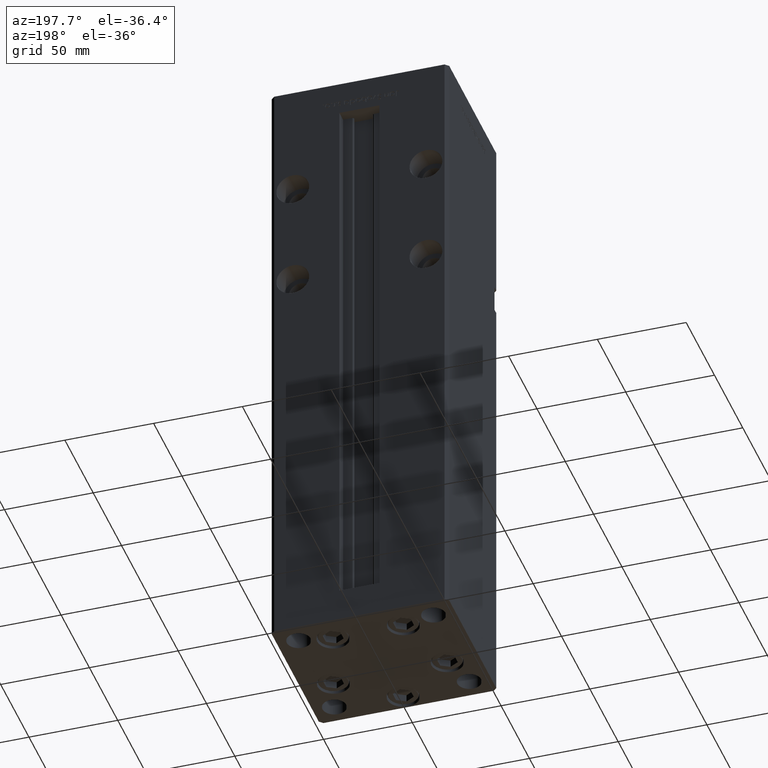
[diagram: clean part render]
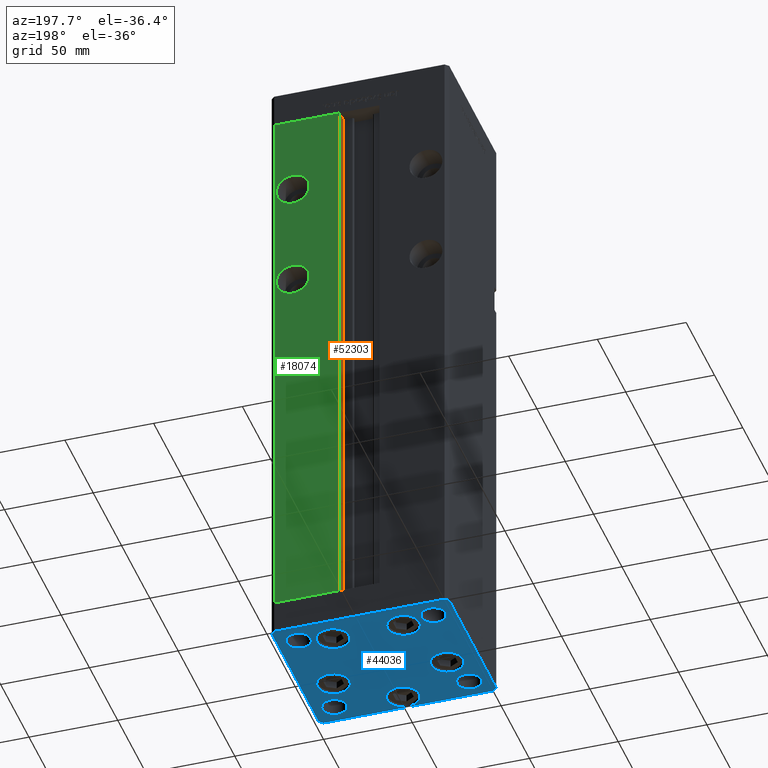
[diagram: same view with three faces highlighted in distinct colors, each labeled with its STEP entity id]
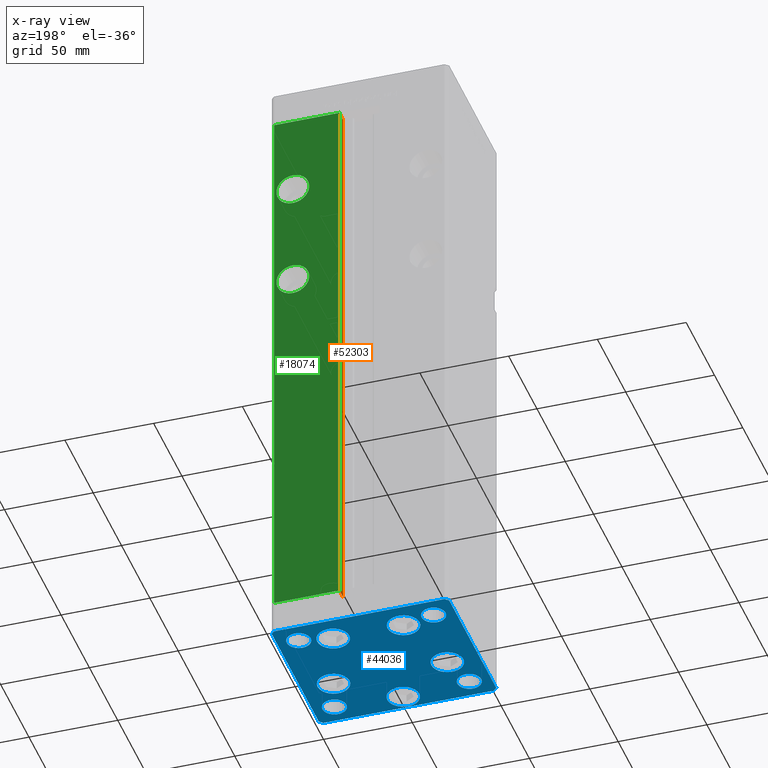
[diagram: x-ray of the same camera — body ghosted, the three highlighted faces saturated]
A machine part, auxiliary view with three faces highlighted in distinct colors.
The next image is the same camera in x-ray (body ghosted, the three faces saturated) — at least one of them is partly hidden behind the body in this view.
Their STEP definitions:

[orange] entity #52303 — the highlighted planar face has unit normal (1, 0, 0).
#1035 = VERTEX_POINT ( 'NONE', #45109 ) ;
#1156 = CARTESIAN_POINT ( 'NONE',  ( 11.24999999999999645, 37.00000000000000000, 0.000000000000000000 ) ) ;
#4479 = VERTEX_POINT ( 'NONE', #5260 ) ;
#5240 = CARTESIAN_POINT ( 'NONE',  ( 11.24999999999999645, 37.00000000000000000, 0.000000000000000000 ) ) ;
#5260 = CARTESIAN_POINT ( 'NONE',  ( 11.24999999999998934, 43.50000000000000000, 318.5000000000000000 ) ) ;
#7309 = CARTESIAN_POINT ( 'NONE',  ( 11.24999999999999645, 43.50000000000000000, 0.000000000000000000 ) ) ;
#11857 = DIRECTION ( 'NONE',  ( 1.000000000000000000, -0.000000000000000000, 0.000000000000000000 ) ) ;
#11937 = VECTOR ( 'NONE', #14554, 1000.000000000000000 ) ;
#12691 = VERTEX_POINT ( 'NONE', #5240 ) ;
#13915 = DIRECTION ( 'NONE',  ( -0.000000000000000000, -1.000000000000000000, 0.000000000000000000 ) ) ;
#14554 = DIRECTION ( 'NONE',  ( -0.000000000000000000, -0.000000000000000000, 1.000000000000000000 ) ) ;
#15353 = DIRECTION ( 'NONE',  ( 0.000000000000000000, 0.000000000000000000, -1.000000000000000000 ) ) ;
#15814 = EDGE_CURVE ( 'NONE', #12691, #1035, #38721, .T. ) ;
#18176 = DIRECTION ( 'NONE',  ( -0.000000000000000000, -0.000000000000000000, 1.000000000000000000 ) ) ;
#23067 = ORIENTED_EDGE ( 'NONE', *, *, #42869, .F. ) ;
#25018 = VECTOR ( 'NONE', #13915, 1000.000000000000000 ) ;
#25058 = AXIS2_PLACEMENT_3D ( 'NONE', #47617, #11857, #15353 ) ;
#25335 = DIRECTION ( 'NONE',  ( 0.000000000000000000, 1.000000000000000000, 0.000000000000000000 ) ) ;
#26605 = VECTOR ( 'NONE', #18176, 1000.000000000000000 ) ;
#26773 = CARTESIAN_POINT ( 'NONE',  ( 11.24999999999999645, 43.50000000000000000, 0.000000000000000000 ) ) ;
#27232 = EDGE_CURVE ( 'NONE', #12691, #51340, #50871, .T. ) ;
#31221 = PLANE ( 'NONE',  #25058 ) ;
#32265 = FACE_OUTER_BOUND ( 'NONE', #50209, .T. ) ;
#34326 = LINE ( 'NONE', #50736, #25018 ) ;
#34571 = LINE ( 'NONE', #26773, #26605 ) ;
#34966 = CARTESIAN_POINT ( 'NONE',  ( 11.24999999999999645, 37.00000000000000000, 0.000000000000000000 ) ) ;
#36760 = ORIENTED_EDGE ( 'NONE', *, *, #27232, .F. ) ;
#38721 = LINE ( 'NONE', #34966, #11937 ) ;
#40040 = ORIENTED_EDGE ( 'NONE', *, *, #15814, .T. ) ;
#42869 = EDGE_CURVE ( 'NONE', #51340, #4479, #34571, .T. ) ;
#43039 = VECTOR ( 'NONE', #25335, 1000.000000000000000 ) ;
#45109 = CARTESIAN_POINT ( 'NONE',  ( 11.24999999999999645, 37.00000000000000000, 318.5000000000000000 ) ) ;
#47617 = CARTESIAN_POINT ( 'NONE',  ( 11.24999999999999645, 37.00000000000000000, 0.000000000000000000 ) ) ;
#48209 = EDGE_CURVE ( 'NONE', #4479, #1035, #34326, .T. ) ;
#50209 = EDGE_LOOP ( 'NONE', ( #23067, #36760, #40040, #51328 ) ) ;
#50736 = CARTESIAN_POINT ( 'NONE',  ( 11.24999999999999645, 0.000000000000000000, 318.5000000000000000 ) ) ;
#50871 = LINE ( 'NONE', #1156, #43039 ) ;
#51328 = ORIENTED_EDGE ( 'NONE', *, *, #48209, .F. ) ;
#51340 = VERTEX_POINT ( 'NONE', #7309 ) ;
#52303 = ADVANCED_FACE ( 'NONE', ( #32265 ), #31221, .F. ) ;

[blue] entity #44036 — the highlighted planar face has unit normal (0, 0, -1).
#144 = CARTESIAN_POINT ( 'NONE',  ( 4.163799117101000559E-15, -34.00000000000000000, 0.000000000000000000 ) ) ;
#827 = ORIENTED_EDGE ( 'NONE', *, *, #37353, .F. ) ;
#963 = CARTESIAN_POINT ( 'NONE',  ( 50.00000000000000000, -41.49999999999999289, 0.000000000000000000 ) ) ;
#1093 = CIRCLE ( 'NONE', #8815, 6.749999999999999112 ) ;
#1415 = CARTESIAN_POINT ( 'NONE',  ( -48.00000000000000711, 43.49999999999996447, 0.000000000000000000 ) ) ;
#1514 = CARTESIAN_POINT ( 'NONE',  ( -37.99999999999999289, -31.50000000000000000, 0.000000000000000000 ) ) ;
#1663 = CARTESIAN_POINT ( 'NONE',  ( -44.74999999999999289, -31.50000000000000000, 0.000000000000000000 ) ) ;
#1671 = CARTESIAN_POINT ( 'NONE',  ( 23.05550741379014923, -11.33333333333333037, 0.000000000000000000 ) ) ;
#1809 = DIRECTION ( 'NONE',  ( 1.000000000000000000, 0.000000000000000000, 0.000000000000000000 ) ) ;
#1849 = DIRECTION ( 'NONE',  ( 0.000000000000000000, -0.000000000000000000, -1.000000000000000000 ) ) ;
#1924 = VERTEX_POINT ( 'NONE', #31564 ) ;
#2044 = DIRECTION ( 'NONE',  ( 0.000000000000000000, -0.000000000000000000, -1.000000000000000000 ) ) ;
#2178 = LINE ( 'NONE', #30911, #44138 ) ;
#2534 = CARTESIAN_POINT ( 'NONE',  ( 9.000000000000003553, -34.00000000000000000, 0.000000000000000000 ) ) ;
#2558 = CIRCLE ( 'NONE', #42899, 6.749999999999999112 ) ;
#2646 = DIRECTION ( 'NONE',  ( 1.000000000000000000, 0.000000000000000000, 0.000000000000000000 ) ) ;
#3134 = CARTESIAN_POINT ( 'NONE',  ( 49.99999999999992184, 41.49999999999998579, 0.000000000000000000 ) ) ;
#3247 = VERTEX_POINT ( 'NONE', #6227 ) ;
#4091 = EDGE_CURVE ( 'NONE', #15366, #16197, #10828, .T. ) ;
#4290 = AXIS2_PLACEMENT_3D ( 'NONE', #20359, #36739, #45339 ) ;
#4567 = VERTEX_POINT ( 'NONE', #34801 ) ;
#4956 = VECTOR ( 'NONE', #13331, 1000.000000000000114 ) ;
#5060 = CIRCLE ( 'NONE', #51423, 9.000000000000001776 ) ;
#5576 = VERTEX_POINT ( 'NONE', #963 ) ;
#5881 = CARTESIAN_POINT ( 'NONE',  ( 41.05550741379015278, -11.33333333333332860, 0.000000000000000000 ) ) ;
#6079 = DIRECTION ( 'NONE',  ( -0.000000000000000000, 0.000000000000000000, 1.000000000000000000 ) ) ;
#6159 = EDGE_LOOP ( 'NONE', ( #7152, #13502 ) ) ;
#6227 = CARTESIAN_POINT ( 'NONE',  ( -48.00000000000000711, 43.49999999999996447, 0.000000000000000000 ) ) ;
#6249 = EDGE_CURVE ( 'NONE', #36943, #8982, #17337, .T. ) ;
#6710 = EDGE_CURVE ( 'NONE', #11426, #26482, #42267, .T. ) ;
#6797 = DIRECTION ( 'NONE',  ( -0.000000000000000000, 0.000000000000000000, 1.000000000000000000 ) ) ;
#7014 = CIRCLE ( 'NONE', #40468, 9.000000000000001776 ) ;
#7152 = ORIENTED_EDGE ( 'NONE', *, *, #20540, .F. ) ;
#7439 = DIRECTION ( 'NONE',  ( -0.7071067811865474617, 0.7071067811865474617, 0.000000000000000000 ) ) ;
#7767 = EDGE_LOOP ( 'NONE', ( #18865, #14057 ) ) ;
#8250 = EDGE_CURVE ( 'NONE', #51225, #22341, #10891, .T. ) ;
#8815 = AXIS2_PLACEMENT_3D ( 'NONE', #46609, #9812, #42562 ) ;
#8850 = EDGE_LOOP ( 'NONE', ( #24772, #16345 ) ) ;
#8905 = ORIENTED_EDGE ( 'NONE', *, *, #50925, .F. ) ;
#8982 = VERTEX_POINT ( 'NONE', #21406 ) ;
#9308 = FACE_OUTER_BOUND ( 'NONE', #49142, .T. ) ;
#9329 = CARTESIAN_POINT ( 'NONE',  ( 49.99999999999992184, 41.49999999999998579, 0.000000000000000000 ) ) ;
#9702 = CIRCLE ( 'NONE', #41394, 9.000000000000000000 ) ;
#9812 = DIRECTION ( 'NONE',  ( -0.000000000000000000, 0.000000000000000000, 1.000000000000000000 ) ) ;
#10232 = DIRECTION ( 'NONE',  ( 0.7071067811865463515, 0.7071067811865487940, 0.000000000000000000 ) ) ;
#10306 = CARTESIAN_POINT ( 'NONE',  ( -38.00000000000000000, 31.50000000000000000, 0.000000000000000000 ) ) ;
#10354 = ORIENTED_EDGE ( 'NONE', *, *, #37817, .T. ) ;
#10524 = DIRECTION ( 'NONE',  ( -1.000000000000000000, -3.614007241618350743E-16, 0.000000000000000000 ) ) ;
#10828 = LINE ( 'NONE', #27450, #39618 ) ;
#10891 = CIRCLE ( 'NONE', #41756, 6.749999999999999112 ) ;
#11272 = EDGE_CURVE ( 'NONE', #16197, #28868, #42046, .T. ) ;
#11359 = DIRECTION ( 'NONE',  ( 0.000000000000000000, -0.000000000000000000, -1.000000000000000000 ) ) ;
#11426 = VERTEX_POINT ( 'NONE', #28064 ) ;
#11780 = EDGE_LOOP ( 'NONE', ( #18123, #17635 ) ) ;
#12755 = DIRECTION ( 'NONE',  ( 0.000000000000000000, -0.000000000000000000, -1.000000000000000000 ) ) ;
#12765 = VERTEX_POINT ( 'NONE', #51981 ) ;
#13331 = DIRECTION ( 'NONE',  ( 0.7071067811865474617, -0.7071067811865474617, 0.000000000000000000 ) ) ;
#13335 = FACE_BOUND ( 'NONE', #6159, .T. ) ;
#13502 = ORIENTED_EDGE ( 'NONE', *, *, #6710, .F. ) ;
#13623 = DIRECTION ( 'NONE',  ( 1.000000000000000000, 0.000000000000000000, 0.000000000000000000 ) ) ;
#13700 = CARTESIAN_POINT ( 'NONE',  ( -47.99999999999999289, -43.50000000000001421, 0.000000000000000000 ) ) ;
#14057 = ORIENTED_EDGE ( 'NONE', *, *, #32318, .T. ) ;
#14191 = CIRCLE ( 'NONE', #26194, 6.749999999999999112 ) ;
#14650 = AXIS2_PLACEMENT_3D ( 'NONE', #51478, #46645, #35339 ) ;
#14830 = ORIENTED_EDGE ( 'NONE', *, *, #4091, .T. ) ;
#14906 = DIRECTION ( 'NONE',  ( -1.003213576468515193E-15, 1.000000000000000000, 0.000000000000000000 ) ) ;
#15215 = ORIENTED_EDGE ( 'NONE', *, *, #11272, .T. ) ;
#15217 = EDGE_CURVE ( 'NONE', #36005, #52170, #5060, .T. ) ;
#15242 = ORIENTED_EDGE ( 'NONE', *, *, #24378, .T. ) ;
#15358 = DIRECTION ( 'NONE',  ( 8.360113137237628665E-17, -1.000000000000000000, 0.000000000000000000 ) ) ;
#15366 = VERTEX_POINT ( 'NONE', #22406 ) ;
#15901 = DIRECTION ( 'NONE',  ( 1.000000000000000000, 0.000000000000000000, 0.000000000000000000 ) ) ;
#16197 = VERTEX_POINT ( 'NONE', #16852 ) ;
#16254 = DIRECTION ( 'NONE',  ( 1.000000000000000000, 0.000000000000000000, 0.000000000000000000 ) ) ;
#16345 = ORIENTED_EDGE ( 'NONE', *, *, #8250, .T. ) ;
#16845 = DIRECTION ( 'NONE',  ( 1.000000000000000000, 0.000000000000000000, 0.000000000000000000 ) ) ;
#16852 = CARTESIAN_POINT ( 'NONE',  ( -50.00000000000000000, -41.50000000000000000, 0.000000000000000000 ) ) ;
#16913 = VERTEX_POINT ( 'NONE', #48337 ) ;
#17337 = CIRCLE ( 'NONE', #29394, 8.999999999999998224 ) ;
#17635 = ORIENTED_EDGE ( 'NONE', *, *, #15217, .T. ) ;
#17735 = EDGE_CURVE ( 'NONE', #52170, #36005, #41136, .T. ) ;
#18123 = ORIENTED_EDGE ( 'NONE', *, *, #17735, .T. ) ;
#18127 = EDGE_CURVE ( 'NONE', #5576, #37027, #52515, .T. ) ;
#18200 = CARTESIAN_POINT ( 'NONE',  ( 38.00000000000000000, -31.49999999999999289, 0.000000000000000000 ) ) ;
#18691 = CARTESIAN_POINT ( 'NONE',  ( -19.82068048781373903, 27.62499999999999645, 0.000000000000000000 ) ) ;
#18856 = ORIENTED_EDGE ( 'NONE', *, *, #36952, .T. ) ;
#18865 = ORIENTED_EDGE ( 'NONE', *, *, #48560, .T. ) ;
#19203 = VECTOR ( 'NONE', #14906, 1000.000000000000000 ) ;
#19258 = VERTEX_POINT ( 'NONE', #29650 ) ;
#19405 = CARTESIAN_POINT ( 'NONE',  ( -32.05550741379015278, -11.33333333333333925, 0.000000000000000000 ) ) ;
#19479 = ORIENTED_EDGE ( 'NONE', *, *, #30572, .T. ) ;
#19511 = VERTEX_POINT ( 'NONE', #22037 ) ;
#19723 = EDGE_LOOP ( 'NONE', ( #47569, #15242 ) ) ;
#20092 = DIRECTION ( 'NONE',  ( 0.000000000000000000, -0.000000000000000000, -1.000000000000000000 ) ) ;
#20301 = EDGE_LOOP ( 'NONE', ( #34674, #32533 ) ) ;
#20359 = CARTESIAN_POINT ( 'NONE',  ( 32.05550741379015278, -11.33333333333333037, 0.000000000000000000 ) ) ;
#20528 = VERTEX_POINT ( 'NONE', #22383 ) ;
#20540 = EDGE_CURVE ( 'NONE', #26482, #11426, #33513, .T. ) ;
#21394 = DIRECTION ( 'NONE',  ( 0.000000000000000000, -0.000000000000000000, -1.000000000000000000 ) ) ;
#21406 = CARTESIAN_POINT ( 'NONE',  ( 10.82068048781373193, 27.62500000000000000, 0.000000000000000000 ) ) ;
#21651 = EDGE_CURVE ( 'NONE', #1924, #48329, #35165, .T. ) ;
#21829 = CARTESIAN_POINT ( 'NONE',  ( -31.25000000000000000, 31.50000000000000000, 0.000000000000000000 ) ) ;
#22037 = CARTESIAN_POINT ( 'NONE',  ( 47.99999999999990763, 43.50000000000000000, 0.000000000000000000 ) ) ;
#22099 = LINE ( 'NONE', #1415, #31981 ) ;
#22341 = VERTEX_POINT ( 'NONE', #39110 ) ;
#22383 = CARTESIAN_POINT ( 'NONE',  ( 44.75000000000000000, 31.49999999999999289, 0.000000000000000000 ) ) ;
#22406 = CARTESIAN_POINT ( 'NONE',  ( -50.00000000000000711, 41.49999999999995026, 0.000000000000000000 ) ) ;
#22519 = AXIS2_PLACEMENT_3D ( 'NONE', #33753, #6079, #33476 ) ;
#22553 = CIRCLE ( 'NONE', #50023, 6.749999999999999112 ) ;
#23500 = DIRECTION ( 'NONE',  ( 1.000000000000000000, 0.000000000000000000, 0.000000000000000000 ) ) ;
#23611 = AXIS2_PLACEMENT_3D ( 'NONE', #144, #41503, #16254 ) ;
#24144 = VECTOR ( 'NONE', #38403, 1000.000000000000000 ) ;
#24378 = EDGE_CURVE ( 'NONE', #48329, #1924, #44675, .T. ) ;
#24446 = AXIS2_PLACEMENT_3D ( 'NONE', #46402, #50447, #13623 ) ;
#24673 = DIRECTION ( 'NONE',  ( 1.000000000000000000, 0.000000000000000000, 0.000000000000000000 ) ) ;
#24732 = VERTEX_POINT ( 'NONE', #48131 ) ;
#24772 = ORIENTED_EDGE ( 'NONE', *, *, #43500, .T. ) ;
#24914 = AXIS2_PLACEMENT_3D ( 'NONE', #35836, #39597, #51455 ) ;
#24946 = EDGE_CURVE ( 'NONE', #37027, #19511, #35900, .T. ) ;
#26051 = ORIENTED_EDGE ( 'NONE', *, *, #27506, .T. ) ;
#26194 = AXIS2_PLACEMENT_3D ( 'NONE', #39001, #26379, #47601 ) ;
#26379 = DIRECTION ( 'NONE',  ( -0.000000000000000000, 0.000000000000000000, 1.000000000000000000 ) ) ;
#26482 = VERTEX_POINT ( 'NONE', #21829 ) ;
#26525 = DIRECTION ( 'NONE',  ( 0.000000000000000000, -0.000000000000000000, -1.000000000000000000 ) ) ;
#27450 = CARTESIAN_POINT ( 'NONE',  ( -50.00000000000000711, 41.49999999999995026, 0.000000000000000000 ) ) ;
#27506 = EDGE_CURVE ( 'NONE', #28868, #19258, #50522, .T. ) ;
#27994 = DIRECTION ( 'NONE',  ( 0.000000000000000000, -0.000000000000000000, -1.000000000000000000 ) ) ;
#28064 = CARTESIAN_POINT ( 'NONE',  ( -44.75000000000000000, 31.50000000000000000, 0.000000000000000000 ) ) ;
#28610 = DIRECTION ( 'NONE',  ( 1.000000000000000000, 0.000000000000000000, 0.000000000000000000 ) ) ;
#28681 = CARTESIAN_POINT ( 'NONE',  ( 19.82068048781373193, 27.62500000000000000, 0.000000000000000000 ) ) ;
#28722 = CARTESIAN_POINT ( 'NONE',  ( 19.82068048781373193, 27.62500000000000000, 0.000000000000000000 ) ) ;
#28868 = VERTEX_POINT ( 'NONE', #32515 ) ;
#29221 = AXIS2_PLACEMENT_3D ( 'NONE', #10306, #6797, #30974 ) ;
#29394 = AXIS2_PLACEMENT_3D ( 'NONE', #28722, #45107, #24673 ) ;
#29455 = FACE_BOUND ( 'NONE', #20301, .T. ) ;
#29650 = CARTESIAN_POINT ( 'NONE',  ( 47.99999999999999289, -43.50000000000001421, 0.000000000000000000 ) ) ;
#30248 = FACE_BOUND ( 'NONE', #8850, .T. ) ;
#30508 = EDGE_LOOP ( 'NONE', ( #18856, #33422 ) ) ;
#30572 = EDGE_CURVE ( 'NONE', #3247, #15366, #22099, .T. ) ;
#30773 = PLANE ( 'NONE',  #14650 ) ;
#30911 = CARTESIAN_POINT ( 'NONE',  ( 47.99999999999990763, 43.50000000000000000, 0.000000000000000000 ) ) ;
#30974 = DIRECTION ( 'NONE',  ( 1.000000000000000000, 0.000000000000000000, 0.000000000000000000 ) ) ;
#31104 = EDGE_CURVE ( 'NONE', #49511, #43297, #22553, .T. ) ;
#31237 = DIRECTION ( 'NONE',  ( 1.000000000000000000, 0.000000000000000000, 0.000000000000000000 ) ) ;
#31326 = CIRCLE ( 'NONE', #35624, 8.999999999999998224 ) ;
#31564 = CARTESIAN_POINT ( 'NONE',  ( -28.82068048781373548, 27.62499999999999645, 0.000000000000000000 ) ) ;
#31825 = VECTOR ( 'NONE', #7439, 1000.000000000000114 ) ;
#31981 = VECTOR ( 'NONE', #42245, 1000.000000000000000 ) ;
#32318 = EDGE_CURVE ( 'NONE', #12765, #4567, #51796, .T. ) ;
#32367 = CARTESIAN_POINT ( 'NONE',  ( 32.05550741379015278, -11.33333333333333037, 0.000000000000000000 ) ) ;
#32515 = CARTESIAN_POINT ( 'NONE',  ( -47.99999999999999289, -43.50000000000001421, 0.000000000000000000 ) ) ;
#32533 = ORIENTED_EDGE ( 'NONE', *, *, #38053, .T. ) ;
#33422 = ORIENTED_EDGE ( 'NONE', *, *, #6249, .T. ) ;
#33476 = DIRECTION ( 'NONE',  ( 1.000000000000000000, 0.000000000000000000, 0.000000000000000000 ) ) ;
#33513 = CIRCLE ( 'NONE', #29221, 6.749999999999999112 ) ;
#33753 = CARTESIAN_POINT ( 'NONE',  ( -38.00000000000000000, 31.50000000000000000, 0.000000000000000000 ) ) ;
#34139 = CARTESIAN_POINT ( 'NONE',  ( 47.99999999999999289, -43.50000000000001421, 0.000000000000000000 ) ) ;
#34556 = EDGE_CURVE ( 'NONE', #19511, #3247, #2178, .T. ) ;
#34674 = ORIENTED_EDGE ( 'NONE', *, *, #50212, .T. ) ;
#34801 = CARTESIAN_POINT ( 'NONE',  ( -41.05550741379015278, -11.33333333333333925, 0.000000000000000000 ) ) ;
#35165 = CIRCLE ( 'NONE', #42996, 9.000000000000000000 ) ;
#35339 = DIRECTION ( 'NONE',  ( 1.000000000000000000, 0.000000000000000000, 0.000000000000000000 ) ) ;
#35538 = CARTESIAN_POINT ( 'NONE',  ( -37.99999999999999289, -31.50000000000000000, 0.000000000000000000 ) ) ;
#35624 = AXIS2_PLACEMENT_3D ( 'NONE', #28681, #20092, #16845 ) ;
#35836 = CARTESIAN_POINT ( 'NONE',  ( -19.82068048781373903, 27.62499999999999645, 0.000000000000000000 ) ) ;
#35900 = LINE ( 'NONE', #3134, #31825 ) ;
#36005 = VERTEX_POINT ( 'NONE', #5881 ) ;
#36103 = CARTESIAN_POINT ( 'NONE',  ( 50.00000000000000000, -41.49999999999999289, 0.000000000000000000 ) ) ;
#36739 = DIRECTION ( 'NONE',  ( 0.000000000000000000, -0.000000000000000000, -1.000000000000000000 ) ) ;
#36943 = VERTEX_POINT ( 'NONE', #40757 ) ;
#36952 = EDGE_CURVE ( 'NONE', #8982, #36943, #31326, .T. ) ;
#37027 = VERTEX_POINT ( 'NONE', #9329 ) ;
#37353 = EDGE_CURVE ( 'NONE', #20528, #16913, #14191, .T. ) ;
#37516 = CARTESIAN_POINT ( 'NONE',  ( 31.25000000000000000, -31.49999999999999289, 0.000000000000000000 ) ) ;
#37564 = ORIENTED_EDGE ( 'NONE', *, *, #48804, .T. ) ;
#37817 = EDGE_CURVE ( 'NONE', #43297, #49511, #50211, .T. ) ;
#38053 = EDGE_CURVE ( 'NONE', #51868, #24732, #39908, .T. ) ;
#38381 = CARTESIAN_POINT ( 'NONE',  ( 4.163799117101000559E-15, -34.00000000000000000, 0.000000000000000000 ) ) ;
#38403 = DIRECTION ( 'NONE',  ( 1.000000000000000000, 0.000000000000000000, 0.000000000000000000 ) ) ;
#38999 = ORIENTED_EDGE ( 'NONE', *, *, #18127, .T. ) ;
#39001 = CARTESIAN_POINT ( 'NONE',  ( 38.00000000000000000, 31.49999999999999289, 0.000000000000000000 ) ) ;
#39110 = CARTESIAN_POINT ( 'NONE',  ( -31.24999999999999289, -31.50000000000000000, 0.000000000000000000 ) ) ;
#39597 = DIRECTION ( 'NONE',  ( 0.000000000000000000, -0.000000000000000000, -1.000000000000000000 ) ) ;
#39618 = VECTOR ( 'NONE', #15358, 1000.000000000000000 ) ;
#39908 = CIRCLE ( 'NONE', #23611, 9.000000000000000000 ) ;
#40468 = AXIS2_PLACEMENT_3D ( 'NONE', #19405, #11359, #31237 ) ;
#40757 = CARTESIAN_POINT ( 'NONE',  ( 28.82068048781372838, 27.62500000000000000, 0.000000000000000000 ) ) ;
#41136 = CIRCLE ( 'NONE', #4290, 9.000000000000001776 ) ;
#41394 = AXIS2_PLACEMENT_3D ( 'NONE', #38381, #1849, #2646 ) ;
#41503 = DIRECTION ( 'NONE',  ( 0.000000000000000000, -0.000000000000000000, -1.000000000000000000 ) ) ;
#41531 = FACE_BOUND ( 'NONE', #30508, .T. ) ;
#41756 = AXIS2_PLACEMENT_3D ( 'NONE', #1514, #21394, #46116 ) ;
#42046 = LINE ( 'NONE', #46360, #4956 ) ;
#42245 = DIRECTION ( 'NONE',  ( -0.7071067811865463515, -0.7071067811865487940, 0.000000000000000000 ) ) ;
#42267 = CIRCLE ( 'NONE', #22519, 6.749999999999999112 ) ;
#42562 = DIRECTION ( 'NONE',  ( 1.000000000000000000, 0.000000000000000000, 0.000000000000000000 ) ) ;
#42865 = DIRECTION ( 'NONE',  ( 1.000000000000000000, 0.000000000000000000, 0.000000000000000000 ) ) ;
#42899 = AXIS2_PLACEMENT_3D ( 'NONE', #35538, #27994, #15901 ) ;
#42996 = AXIS2_PLACEMENT_3D ( 'NONE', #18691, #2044, #42865 ) ;
#43297 = VERTEX_POINT ( 'NONE', #44952 ) ;
#43401 = CARTESIAN_POINT ( 'NONE',  ( -32.05550741379015278, -11.33333333333333925, 0.000000000000000000 ) ) ;
#43457 = CARTESIAN_POINT ( 'NONE',  ( -10.82068048781373903, 27.62499999999999645, 0.000000000000000000 ) ) ;
#43500 = EDGE_CURVE ( 'NONE', #22341, #51225, #2558, .T. ) ;
#44036 = ADVANCED_FACE ( 'NONE', ( #45571, #41531, #49879, #29455, #45844, #46099, #50155, #13335, #9308, #30248 ), #30773, .T. ) ;
#44138 = VECTOR ( 'NONE', #10524, 1000.000000000000000 ) ;
#44449 = ORIENTED_EDGE ( 'NONE', *, *, #31104, .T. ) ;
#44675 = CIRCLE ( 'NONE', #24914, 9.000000000000000000 ) ;
#44763 = ORIENTED_EDGE ( 'NONE', *, *, #34556, .T. ) ;
#44952 = CARTESIAN_POINT ( 'NONE',  ( 44.75000000000000000, -31.49999999999999289, 0.000000000000000000 ) ) ;
#45107 = DIRECTION ( 'NONE',  ( 0.000000000000000000, -0.000000000000000000, -1.000000000000000000 ) ) ;
#45339 = DIRECTION ( 'NONE',  ( 1.000000000000000000, 0.000000000000000000, 0.000000000000000000 ) ) ;
#45571 = FACE_BOUND ( 'NONE', #19723, .T. ) ;
#45844 = FACE_BOUND ( 'NONE', #7767, .T. ) ;
#46099 = FACE_BOUND ( 'NONE', #46581, .T. ) ;
#46116 = DIRECTION ( 'NONE',  ( 1.000000000000000000, 0.000000000000000000, 0.000000000000000000 ) ) ;
#46360 = CARTESIAN_POINT ( 'NONE',  ( -50.00000000000000000, -41.50000000000000000, 0.000000000000000000 ) ) ;
#46402 = CARTESIAN_POINT ( 'NONE',  ( 38.00000000000000000, -31.49999999999999289, 0.000000000000000000 ) ) ;
#46581 = EDGE_LOOP ( 'NONE', ( #827, #8905 ) ) ;
#46609 = CARTESIAN_POINT ( 'NONE',  ( 38.00000000000000000, 31.49999999999999289, 0.000000000000000000 ) ) ;
#46645 = DIRECTION ( 'NONE',  ( -0.000000000000000000, 0.000000000000000000, 1.000000000000000000 ) ) ;
#47363 = VECTOR ( 'NONE', #10232, 1000.000000000000000 ) ;
#47569 = ORIENTED_EDGE ( 'NONE', *, *, #21651, .T. ) ;
#47601 = DIRECTION ( 'NONE',  ( 1.000000000000000000, 0.000000000000000000, 0.000000000000000000 ) ) ;
#47861 = EDGE_LOOP ( 'NONE', ( #10354, #44449 ) ) ;
#47983 = ORIENTED_EDGE ( 'NONE', *, *, #24946, .T. ) ;
#48131 = CARTESIAN_POINT ( 'NONE',  ( -8.999999999999996447, -34.00000000000000000, 0.000000000000000000 ) ) ;
#48329 = VERTEX_POINT ( 'NONE', #43457 ) ;
#48332 = AXIS2_PLACEMENT_3D ( 'NONE', #43401, #52007, #23500 ) ;
#48337 = CARTESIAN_POINT ( 'NONE',  ( 31.25000000000000000, 31.49999999999999289, 0.000000000000000000 ) ) ;
#48560 = EDGE_CURVE ( 'NONE', #4567, #12765, #7014, .T. ) ;
#48804 = EDGE_CURVE ( 'NONE', #19258, #5576, #51081, .T. ) ;
#49142 = EDGE_LOOP ( 'NONE', ( #15215, #26051, #37564, #38999, #47983, #44763, #19479, #14830 ) ) ;
#49511 = VERTEX_POINT ( 'NONE', #37516 ) ;
#49879 = FACE_BOUND ( 'NONE', #11780, .T. ) ;
#50023 = AXIS2_PLACEMENT_3D ( 'NONE', #18200, #26525, #1809 ) ;
#50155 = FACE_BOUND ( 'NONE', #47861, .T. ) ;
#50211 = CIRCLE ( 'NONE', #24446, 6.749999999999999112 ) ;
#50212 = EDGE_CURVE ( 'NONE', #24732, #51868, #9702, .T. ) ;
#50447 = DIRECTION ( 'NONE',  ( 0.000000000000000000, -0.000000000000000000, -1.000000000000000000 ) ) ;
#50522 = LINE ( 'NONE', #13700, #24144 ) ;
#50925 = EDGE_CURVE ( 'NONE', #16913, #20528, #1093, .T. ) ;
#51081 = LINE ( 'NONE', #34139, #47363 ) ;
#51225 = VERTEX_POINT ( 'NONE', #1663 ) ;
#51423 = AXIS2_PLACEMENT_3D ( 'NONE', #32367, #12755, #28610 ) ;
#51455 = DIRECTION ( 'NONE',  ( 1.000000000000000000, 0.000000000000000000, 0.000000000000000000 ) ) ;
#51478 = CARTESIAN_POINT ( 'NONE',  ( 0.000000000000000000, 0.000000000000000000, 0.000000000000000000 ) ) ;
#51796 = CIRCLE ( 'NONE', #48332, 9.000000000000001776 ) ;
#51868 = VERTEX_POINT ( 'NONE', #2534 ) ;
#51981 = CARTESIAN_POINT ( 'NONE',  ( -23.05550741379014923, -11.33333333333333748, 0.000000000000000000 ) ) ;
#52007 = DIRECTION ( 'NONE',  ( 0.000000000000000000, -0.000000000000000000, -1.000000000000000000 ) ) ;
#52170 = VERTEX_POINT ( 'NONE', #1671 ) ;
#52515 = LINE ( 'NONE', #36103, #19203 ) ;

[green] entity #18074 — the highlighted planar face has unit normal (0, -1, 0).
#255 = DIRECTION ( 'NONE',  ( 0.000000000000000000, 1.000000000000000000, 0.000000000000000000 ) ) ;
#593 = DIRECTION ( 'NONE',  ( 0.000000000000000000, 1.000000000000000000, -0.000000000000000000 ) ) ;
#2152 = DIRECTION ( 'NONE',  ( 0.000000000000000000, 0.000000000000000000, 1.000000000000000000 ) ) ;
#4380 = EDGE_CURVE ( 'NONE', #8031, #10297, #7039, .T. ) ;
#4411 = EDGE_CURVE ( 'NONE', #5703, #25177, #43258, .T. ) ;
#4460 = VECTOR ( 'NONE', #14508, 1000.000000000000000 ) ;
#4479 = VERTEX_POINT ( 'NONE', #5260 ) ;
#5260 = CARTESIAN_POINT ( 'NONE',  ( 11.24999999999998934, 43.50000000000000000, 318.5000000000000000 ) ) ;
#5703 = VERTEX_POINT ( 'NONE', #48690 ) ;
#6463 = CARTESIAN_POINT ( 'NONE',  ( 48.00000000000000711, 43.50000000000000000, 318.5000000000000000 ) ) ;
#6978 = DIRECTION ( 'NONE',  ( 0.000000000000000000, 1.000000000000000000, 0.000000000000000000 ) ) ;
#7039 = CIRCLE ( 'NONE', #25047, 9.249999999999980460 ) ;
#7309 = CARTESIAN_POINT ( 'NONE',  ( 11.24999999999999645, 43.50000000000000000, 0.000000000000000000 ) ) ;
#8031 = VERTEX_POINT ( 'NONE', #34625 ) ;
#9551 = FACE_BOUND ( 'NONE', #33635, .T. ) ;
#9583 = EDGE_CURVE ( 'NONE', #13677, #22461, #46067, .T. ) ;
#9602 = CARTESIAN_POINT ( 'NONE',  ( -11.24999999999999645, 43.50000000000000000, 318.5000000000000000 ) ) ;
#9873 = DIRECTION ( 'NONE',  ( 1.000000000000000000, 0.000000000000000000, 0.000000000000000000 ) ) ;
#10297 = VERTEX_POINT ( 'NONE', #32145 ) ;
#11620 = ORIENTED_EDGE ( 'NONE', *, *, #9583, .F. ) ;
#11843 = ORIENTED_EDGE ( 'NONE', *, *, #42869, .T. ) ;
#13320 = CARTESIAN_POINT ( 'NONE',  ( 48.00000000000000711, 43.50000000000000000, 0.000000000000000000 ) ) ;
#13677 = VERTEX_POINT ( 'NONE', #22765 ) ;
#14324 = CARTESIAN_POINT ( 'NONE',  ( 37.50000000000000000, 43.50000000000000000, 222.7500000000000000 ) ) ;
#14508 = DIRECTION ( 'NONE',  ( -0.000000000000000000, -0.000000000000000000, -1.000000000000000000 ) ) ;
#15345 = DIRECTION ( 'NONE',  ( -1.000000000000000000, 0.000000000000000000, 0.000000000000000000 ) ) ;
#16721 = DIRECTION ( 'NONE',  ( 0.000000000000000000, 0.000000000000000000, -1.000000000000000000 ) ) ;
#18074 = ADVANCED_FACE ( 'NONE', ( #9551, #50659, #30224 ), #18401, .F. ) ;
#18176 = DIRECTION ( 'NONE',  ( -0.000000000000000000, -0.000000000000000000, 1.000000000000000000 ) ) ;
#18401 = PLANE ( 'NONE',  #48015 ) ;
#18612 = EDGE_LOOP ( 'NONE', ( #29007, #26867 ) ) ;
#20746 = CARTESIAN_POINT ( 'NONE',  ( 37.50000000000000000, 43.50000000000000000, 213.5000000000000000 ) ) ;
#21009 = CIRCLE ( 'NONE', #48490, 9.249999999999980460 ) ;
#22461 = VERTEX_POINT ( 'NONE', #14324 ) ;
#22536 = VECTOR ( 'NONE', #9873, 1000.000000000000000 ) ;
#22765 = CARTESIAN_POINT ( 'NONE',  ( 37.50000000000000000, 43.50000000000000000, 204.2500000000000000 ) ) ;
#25047 = AXIS2_PLACEMENT_3D ( 'NONE', #43767, #6978, #2152 ) ;
#25177 = VERTEX_POINT ( 'NONE', #13320 ) ;
#26605 = VECTOR ( 'NONE', #18176, 1000.000000000000000 ) ;
#26773 = CARTESIAN_POINT ( 'NONE',  ( 11.24999999999999645, 43.50000000000000000, 0.000000000000000000 ) ) ;
#26867 = ORIENTED_EDGE ( 'NONE', *, *, #35819, .F. ) ;
#28839 = DIRECTION ( 'NONE',  ( 0.000000000000000000, 1.000000000000000000, -0.000000000000000000 ) ) ;
#29007 = ORIENTED_EDGE ( 'NONE', *, *, #4380, .F. ) ;
#29643 = CARTESIAN_POINT ( 'NONE',  ( 37.50000000000000000, 43.50000000000000000, 213.5000000000000000 ) ) ;
#30224 = FACE_OUTER_BOUND ( 'NONE', #46537, .T. ) ;
#30258 = ORIENTED_EDGE ( 'NONE', *, *, #51313, .T. ) ;
#30796 = LINE ( 'NONE', #9602, #22536 ) ;
#31883 = VECTOR ( 'NONE', #15345, 1000.000000000000000 ) ;
#32145 = CARTESIAN_POINT ( 'NONE',  ( 37.50000000000000000, 43.50000000000000000, 264.2500000000000000 ) ) ;
#33635 = EDGE_LOOP ( 'NONE', ( #51082, #11620 ) ) ;
#33695 = ORIENTED_EDGE ( 'NONE', *, *, #4411, .T. ) ;
#34571 = LINE ( 'NONE', #26773, #26605 ) ;
#34625 = CARTESIAN_POINT ( 'NONE',  ( 37.50000000000000000, 43.50000000000000000, 282.7499999999999432 ) ) ;
#35819 = EDGE_CURVE ( 'NONE', #10297, #8031, #21009, .T. ) ;
#36021 = LINE ( 'NONE', #52434, #31883 ) ;
#36417 = EDGE_CURVE ( 'NONE', #22461, #13677, #46753, .T. ) ;
#38274 = CARTESIAN_POINT ( 'NONE',  ( -11.24999999999999645, 43.50000000000000000, 318.5000000000000000 ) ) ;
#42869 = EDGE_CURVE ( 'NONE', #51340, #4479, #34571, .T. ) ;
#43258 = LINE ( 'NONE', #6463, #4460 ) ;
#43501 = AXIS2_PLACEMENT_3D ( 'NONE', #29643, #28839, #46021 ) ;
#43767 = CARTESIAN_POINT ( 'NONE',  ( 37.50000000000000000, 43.50000000000000000, 273.4999999999999432 ) ) ;
#46021 = DIRECTION ( 'NONE',  ( 0.000000000000000000, 0.000000000000000000, -1.000000000000000000 ) ) ;
#46067 = CIRCLE ( 'NONE', #43501, 9.250000000000008882 ) ;
#46077 = DIRECTION ( 'NONE',  ( 0.000000000000000000, -1.000000000000000000, 0.000000000000000000 ) ) ;
#46537 = EDGE_LOOP ( 'NONE', ( #30258, #11843, #50061, #33695 ) ) ;
#46619 = DIRECTION ( 'NONE',  ( 0.000000000000000000, -0.000000000000000000, -1.000000000000000000 ) ) ;
#46753 = CIRCLE ( 'NONE', #52754, 9.250000000000008882 ) ;
#48015 = AXIS2_PLACEMENT_3D ( 'NONE', #38274, #46077, #46619 ) ;
#48490 = AXIS2_PLACEMENT_3D ( 'NONE', #49161, #255, #49420 ) ;
#48690 = CARTESIAN_POINT ( 'NONE',  ( 48.00000000000000711, 43.50000000000000000, 318.5000000000000000 ) ) ;
#49161 = CARTESIAN_POINT ( 'NONE',  ( 37.50000000000000000, 43.50000000000000000, 273.4999999999999432 ) ) ;
#49420 = DIRECTION ( 'NONE',  ( 0.000000000000000000, 0.000000000000000000, 1.000000000000000000 ) ) ;
#50061 = ORIENTED_EDGE ( 'NONE', *, *, #50505, .T. ) ;
#50505 = EDGE_CURVE ( 'NONE', #4479, #5703, #30796, .T. ) ;
#50659 = FACE_BOUND ( 'NONE', #18612, .T. ) ;
#51082 = ORIENTED_EDGE ( 'NONE', *, *, #36417, .F. ) ;
#51313 = EDGE_CURVE ( 'NONE', #25177, #51340, #36021, .T. ) ;
#51340 = VERTEX_POINT ( 'NONE', #7309 ) ;
#52434 = CARTESIAN_POINT ( 'NONE',  ( -11.24999999999999645, 43.50000000000000000, 0.000000000000000000 ) ) ;
#52754 = AXIS2_PLACEMENT_3D ( 'NONE', #20746, #593, #16721 ) ;